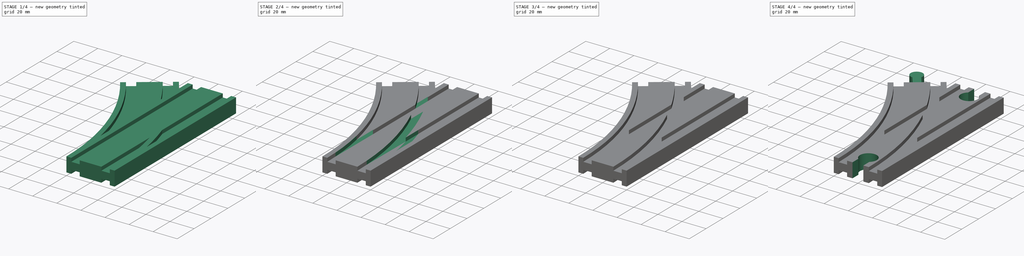
[diagram: build sequence overview — one tinted view per stage of 4, left to right]
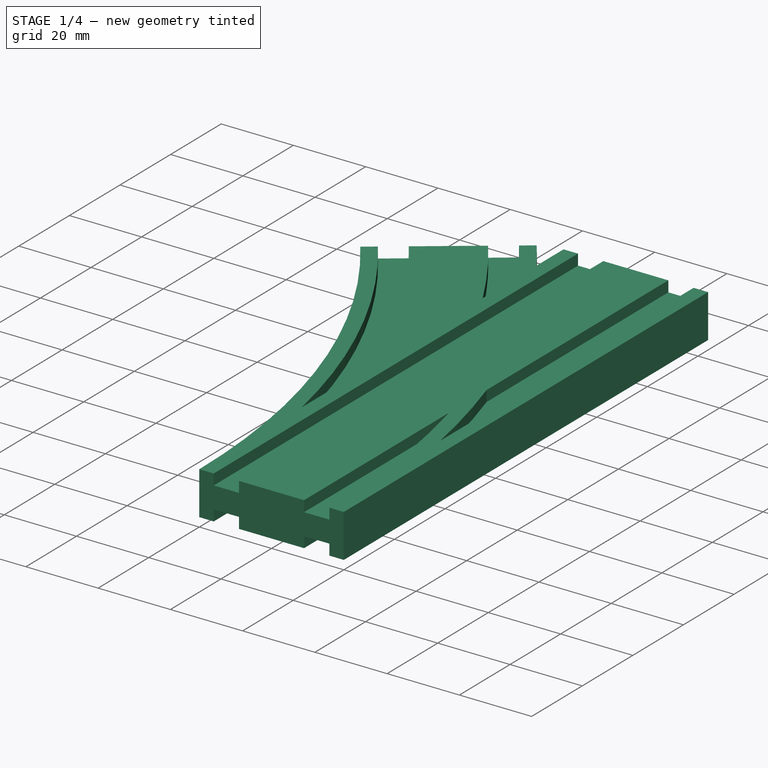
[diagram: stage 1 of 4 — iso view after this stage's code; geometry added in this stage tinted green]
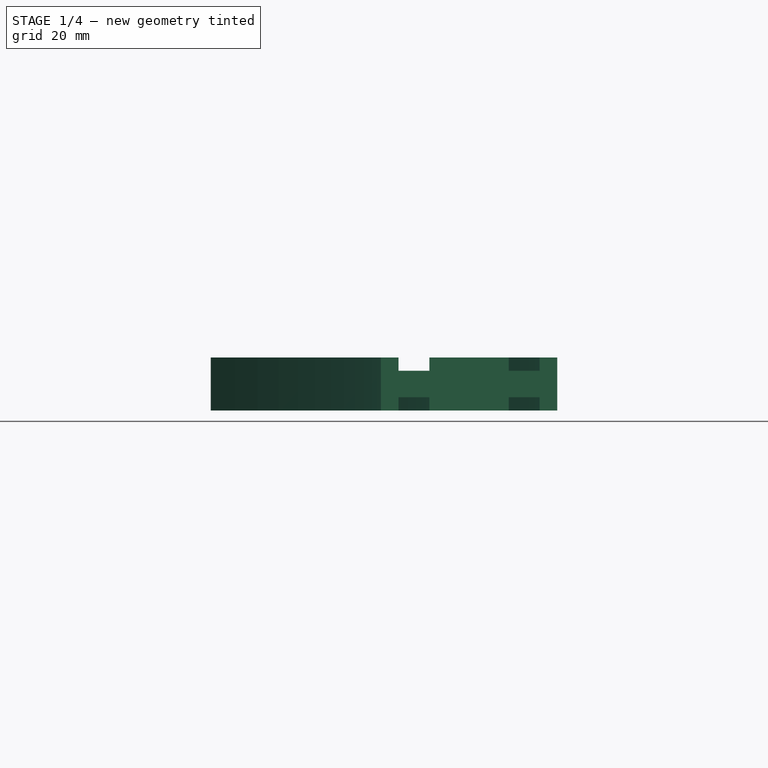
[diagram: stage 1 of 4 — front view after this stage's code; geometry added in this stage tinted green]
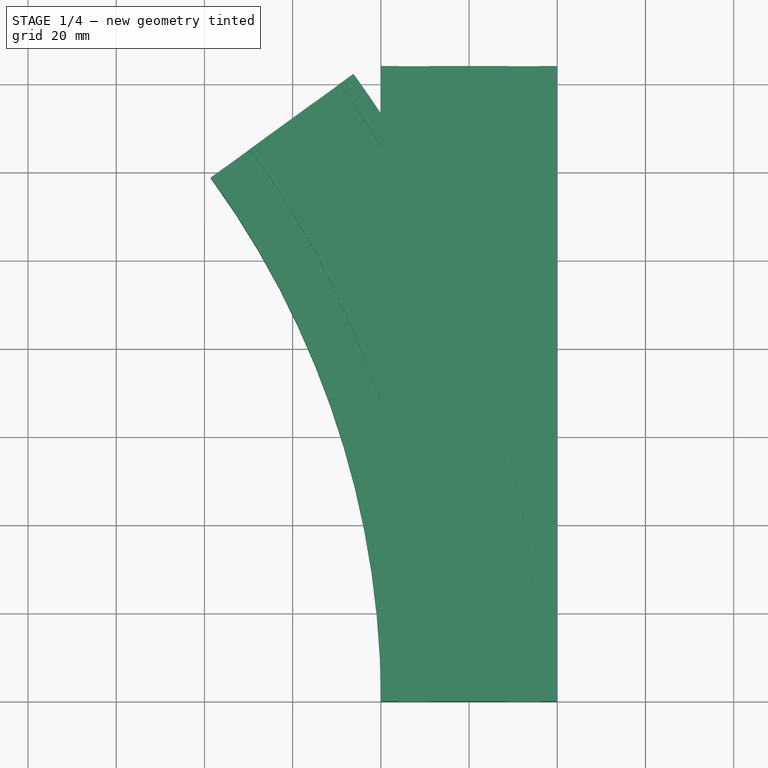
[diagram: stage 1 of 4 — top view after this stage's code; geometry added in this stage tinted green]
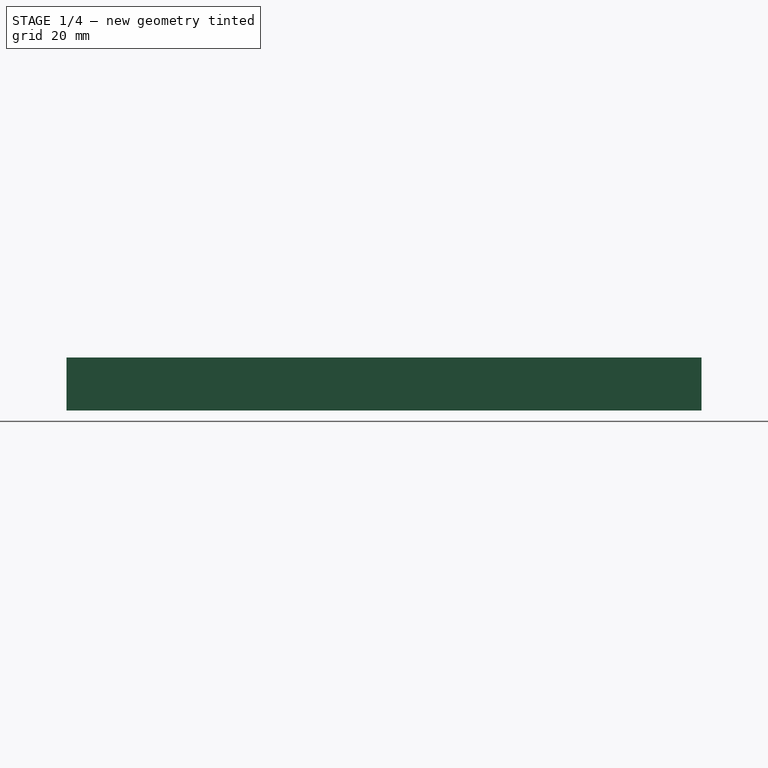
[diagram: stage 1 of 4 — right view after this stage's code; geometry added in this stage tinted green]
FCSTD DOCUMENT  (FreeCAD 0.19R24291 (Git))
Label: 222R 36 degree by 144 FMF mk2
License: All rights reserved
LicenseURL: http://en.wikipedia.org/wiki/All_rights_reserved
objects: Sketcher::SketchObject×11, PartDesign::SubtractivePipe×7, PartDesign::ShapeBinder×4, PartDesign::AdditivePipe×2, PartDesign::Body×2, PartDesign::Pocket×2, PartDesign::Mirrored×1, PartDesign::Line×1, PartDesign::Point×1, PartDesign::Pad×1
note: 44 computed .brp shape members not serialized (recipe doc carries the construction recipe); baked Part::Feature solids carry a one-line shape summary decoded from their .brp

FEATURE [Sketcher::SketchObject] Sketch  label="profile"
  FullyConstrained = true
  MapMode = 5
  Placement = pos=(0,0,0) rot=(1,0,0;1.5708rad)
  sketch-geometry (28):
    g0: LineSegment StartX=-20 StartY=6 StartZ=0 EndX=-20 EndY=-6 EndZ=0
    g1: LineSegment StartX=-20 StartY=-6 StartZ=0 EndX=-16 EndY=-6 EndZ=0
    g2: LineSegment StartX=-16 StartY=-6 StartZ=0 EndX=-16 EndY=-3 EndZ=0
    g3: LineSegment StartX=-16 StartY=-3 StartZ=0 EndX=-9 EndY=-3 EndZ=0
    g4: LineSegment StartX=-9 StartY=-3 StartZ=0 EndX=-9 EndY=-6 EndZ=0
    g5: LineSegment StartX=-9 StartY=-6 StartZ=0 EndX=9 EndY=-6 EndZ=0
    g6: LineSegment StartX=9 StartY=-6 StartZ=0 EndX=9 EndY=-3 EndZ=0
    g7: LineSegment StartX=9 StartY=-3 StartZ=0 EndX=16 EndY=-3 EndZ=0
    g8: LineSegment StartX=16 StartY=-3 StartZ=0 EndX=16 EndY=-6 EndZ=0
    g9: LineSegment StartX=16 StartY=-6 StartZ=0 EndX=20 EndY=-6 EndZ=0
    g10: LineSegment StartX=20 StartY=-6 StartZ=0 EndX=20 EndY=6 EndZ=0
    g11: LineSegment StartX=20 StartY=6 StartZ=0 EndX=16 EndY=6 EndZ=0
    g12: LineSegment StartX=16 StartY=6 StartZ=0 EndX=16 EndY=3 EndZ=0
    g13: LineSegment StartX=16 StartY=3 StartZ=0 EndX=9 EndY=3 EndZ=0
    g14: LineSegment StartX=9 StartY=3 StartZ=0 EndX=9 EndY=6 EndZ=0
    g15: LineSegment StartX=9 StartY=6 StartZ=0 EndX=-9 EndY=6 EndZ=0
    g16: LineSegment StartX=-9 StartY=6 StartZ=0 EndX=-9 EndY=3 EndZ=0
    g17: LineSegment StartX=-9 StartY=3 StartZ=0 EndX=-16 EndY=3 EndZ=0
    g18: LineSegment StartX=-16 StartY=3 StartZ=0 EndX=-16 EndY=6 EndZ=0
    g19: LineSegment StartX=-16 StartY=6 StartZ=0 EndX=-20 EndY=6 EndZ=0
    g20: LineSegment StartX=9 StartY=6 StartZ=0 EndX=16 EndY=6 EndZ=0
    g21: LineSegment StartX=-9 StartY=6 StartZ=0 EndX=-16 EndY=6 EndZ=0
    g22: LineSegment StartX=-16 StartY=-6 StartZ=0 EndX=-9 EndY=-6 EndZ=0
    g23: LineSegment StartX=16 StartY=-3 StartZ=0 EndX=16 EndY=3 EndZ=0
    g24: LineSegment StartX=-9 StartY=3 StartZ=0 EndX=9 EndY=3 EndZ=0
    g25: LineSegment StartX=-9 StartY=-3 StartZ=0 EndX=9 EndY=-3 EndZ=0
    g26: LineSegment StartX=-20 StartY=6 StartZ=0 EndX=20 EndY=-6 EndZ=0
    g27: LineSegment StartX=-20 StartY=-6 StartZ=0 EndX=20 EndY=6 EndZ=0
  constraints (76):
    c: Coincident(g1,g0)
    c: Horizontal(g1)
    c: Coincident(g2,g1)
    c: Vertical(g2)
    c: Coincident(g3,g2)
    c: Horizontal(g3)
    c: Coincident(g4,g3)
    c: Coincident(g5,g4)
    c: Horizontal(g5)
    c: Coincident(g6,g5)
    c: Coincident(g7,g6)
    c: Horizontal(g7)
    c: Coincident(g8,g7)
    c: Coincident(g9,g8)
    c: Coincident(g10,g9)
    c: Coincident(g11,g10)
    c: Coincident(g12,g11)
    c: Coincident(g13,g12)
    c: Coincident(g14,g13)
    c: Vertical(g14)
    c: Coincident(g15,g14)
    c: Coincident(g16,g15)
    c: Coincident(g17,g16)
    c: Horizontal(g17)
    c: Coincident(g18,g17)
    c: Vertical(g18)
    c: Coincident(g19,g18)
    c: Coincident(g19,g0)
    c: Horizontal(g19)
    c: Horizontal(g15)
    c: Horizontal(g13)
    c: Horizontal(g11)
    c: Horizontal(g9)
    c: Vertical(g0)
    c: Vertical(g16)
    c: Vertical(g12)
    c: Vertical(g10)
    c: Vertical(g8)
    c: Vertical(g6)
    c: Vertical(g4)
    c: Equal(g0,g10)
    c: Equal(g3,g17)
    c: Equal(g3,g13)
    c: Equal(g3,g7)
    c: Equal(g5,g15)
    c: DistanceY(g0,g0) = 12
    c: DistanceX(g1,g1) = 4
    c: Equal(g1,g9)
    c: DistanceX(g3,g3) = 7
    c: DistanceX(g5,g5) = 18
    c: Coincident(g20,g14)
    c: Coincident(g20,g11)
    c: Coincident(g21,g15)
    c: Coincident(g21,g18)
    c: Coincident(g22,g1)
    c: Coincident(g22,g4)
    c: Horizontal(g22)
    c: Horizontal(g21)
    c: Horizontal(g20)
    c: Coincident(g23,g7)
    c: Coincident(g23,g12)
    c: Vertical(g23)
    c: DistanceY(g8,g7) = 3
    c: DistanceY(g7,g12) = 6
    c: Coincident(g24,g16)
    c: Coincident(g24,g13)
    c: Horizontal(g24)
    c: Coincident(g25,g3)
    c: Coincident(g25,g6)
    c: Horizontal(g25)
    c: Coincident(g26,g0)
    c: Coincident(g26,g9)
    c: Coincident(g27,g0)
    c: Coincident(g27,g10)
    c: PointOnObject(g-1,g26)
    c: PointOnObject(g-1,g27)
FEATURE [Sketcher::SketchObject] Sketch001  label="stright CL"
  FullyConstrained = true
  MapMode = 5
  Support = -> [XY_Plane]
  sketch-geometry (1):
    g0: LineSegment StartX=0 StartY=0 StartZ=0 EndX=0 EndY=144 EndZ=0
  constraints (3):
    c: Coincident(g0,g-1)
    c: PointOnObject(g0,g-2)
    c: Distance(g0) = 144
FEATURE [Sketcher::SketchObject] Sketch002  label="curve CL"
  FullyConstrained = true
  MapMode = 5
  Support = -> [XY_Plane]
  sketch-geometry (3):
    g0: ArcOfCircle CenterX=-222 CenterY=0 CenterZ=0 NormalX=0 NormalY=0 NormalZ=1 AngleXU=0 Radius=222 StartAngle=0 EndAngle=0.628319
    g1: LineSegment StartX=-222 StartY=0 StartZ=0 EndX=0 EndY=0 EndZ=0
    g2: LineSegment StartX=-222 StartY=0 StartZ=0 EndX=-42.3982 EndY=130.488 EndZ=0
  constraints (8):
    c: Radius(g0) = 222
    c: Coincident(g1,g0)
    c: Coincident(g1,g-1)
    c: Horizontal(g1)
    c: Coincident(g2,g0)
    c: Angle(g1,g2) = 0.628319
    c: Coincident(g0,g1)
    c: Coincident(g0,g2)
FEATURE [Sketcher::SketchObject] Sketch003
  FullyConstrained = true
  MapMode = 5
  Placement = pos=(0,0,0) rot=(1,0,0;1.5708rad)
  Support = -> [XZ_Plane]
FEATURE [PartDesign::AdditivePipe] AdditivePipe
  AuxilleryCurvelinear = true
  AuxillerySpineTangent = false
  Binormal = (0,0,0)
  Mode = 0
  Placement = pos=(0,0,0) rot=(1,0,0;1.5708rad)
  Profile = -> Sketch
  Spine = -> Sketch002
  SpineTangent = false
  Transformation = 0
  Transition = 0
FEATURE [PartDesign::AdditivePipe] AdditivePipe001
  AuxilleryCurvelinear = true
  AuxillerySpineTangent = false
  BaseFeature = -> AdditivePipe
  Binormal = (0,0,0)
  Mode = 0
  Placement = pos=(0,0,0) rot=(1,0,0;1.5708rad)
  Profile = -> Sketch
  Spine = -> Sketch001
  SpineTangent = false
  Transformation = 0
  Transition = 0
FEATURE [Sketcher::SketchObject] Sketch004  label="track cut 1"
  ExternalGeometry = -> [AdditivePipe001]
  FullyConstrained = true
  MapMode = 5
  Placement = pos=(0,0,0) rot=(1,0,0;1.5708rad)
  Support = -> [XZ_Plane]
  sketch-geometry (4):
    g0: LineSegment StartX=-16 StartY=6 StartZ=0 EndX=-16 EndY=3 EndZ=0
    g1: LineSegment StartX=-16 StartY=3 StartZ=0 EndX=-9 EndY=3 EndZ=0
    g2: LineSegment StartX=-9 StartY=3 StartZ=0 EndX=-9 EndY=6 EndZ=0
    g3: LineSegment StartX=-9 StartY=6 StartZ=0 EndX=-16 EndY=6 EndZ=0
  constraints (8):
    c: Coincident(g0,g-4)
    c: Coincident(g0,g-4)
    c: Coincident(g1,g0)
    c: Coincident(g1,g-5)
    c: Coincident(g2,g1)
    c: Coincident(g2,g-5)
    c: Coincident(g3,g2)
    c: Coincident(g3,g0)
FEATURE [PartDesign::SubtractivePipe] SubtractivePipe
  AuxilleryCurvelinear = true
  AuxillerySpineTangent = false
  BaseFeature = -> AdditivePipe001
  Binormal = (0,0,0)
  Mode = 0
  Placement = pos=(0,0,0) rot=(1,0,0;1.5708rad)
  Profile = -> Sketch004
  Spine = -> Sketch001
  SpineTangent = false
  Transformation = 0
  Transition = 0
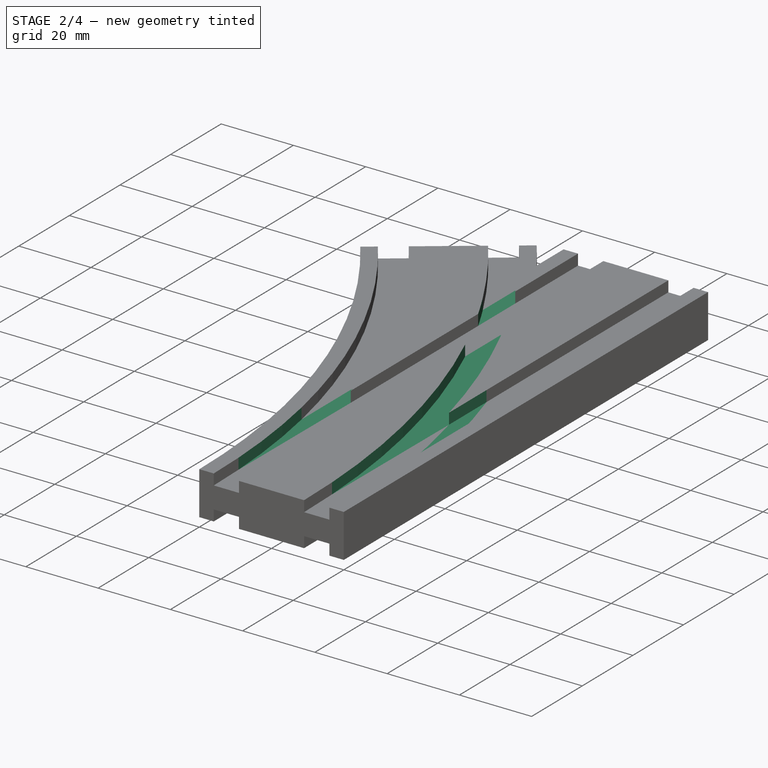
[diagram: stage 2 of 4 — iso view after this stage's code; geometry added in this stage tinted green]
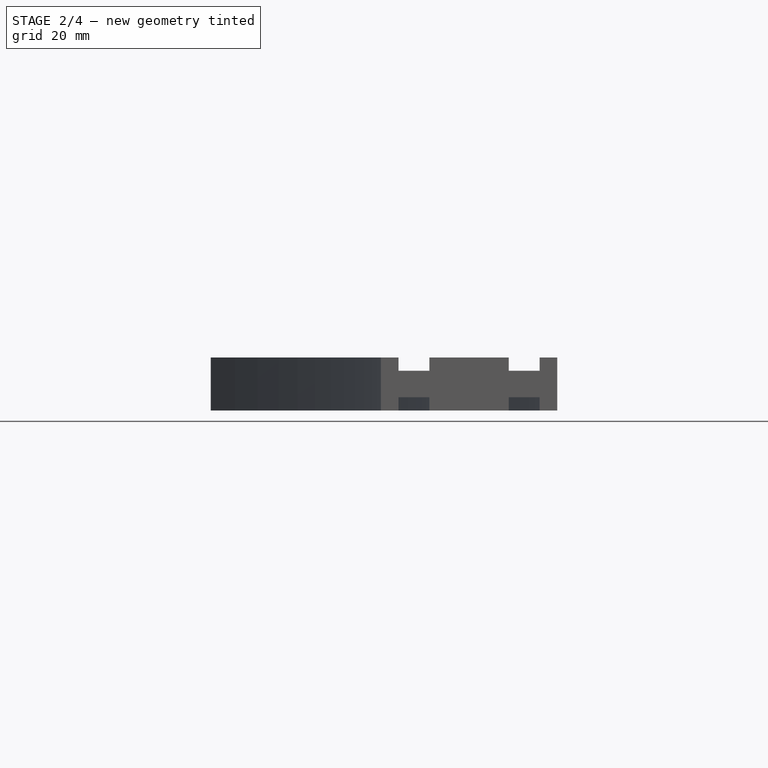
[diagram: stage 2 of 4 — front view after this stage's code; geometry added in this stage tinted green]
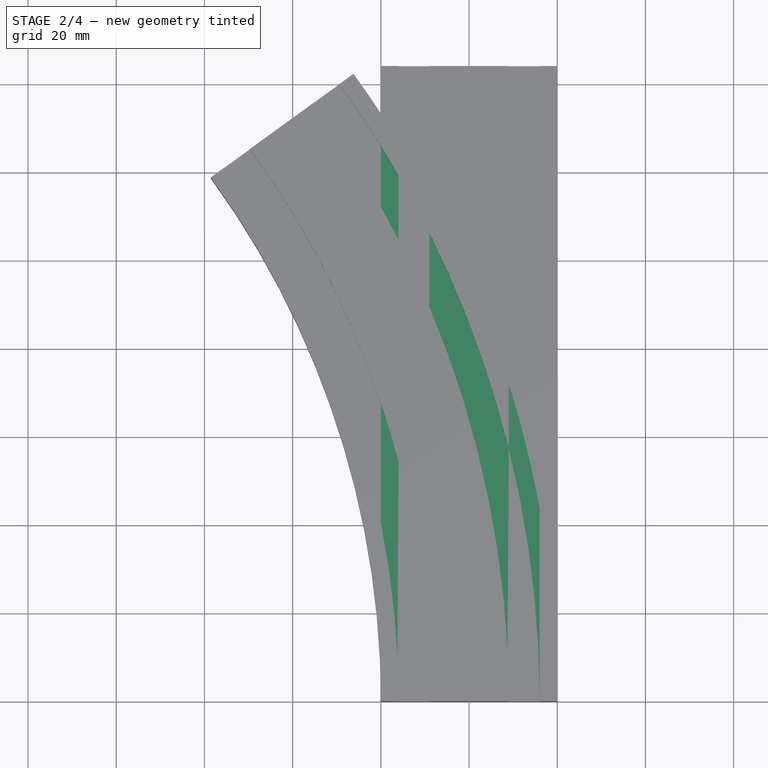
[diagram: stage 2 of 4 — top view after this stage's code; geometry added in this stage tinted green]
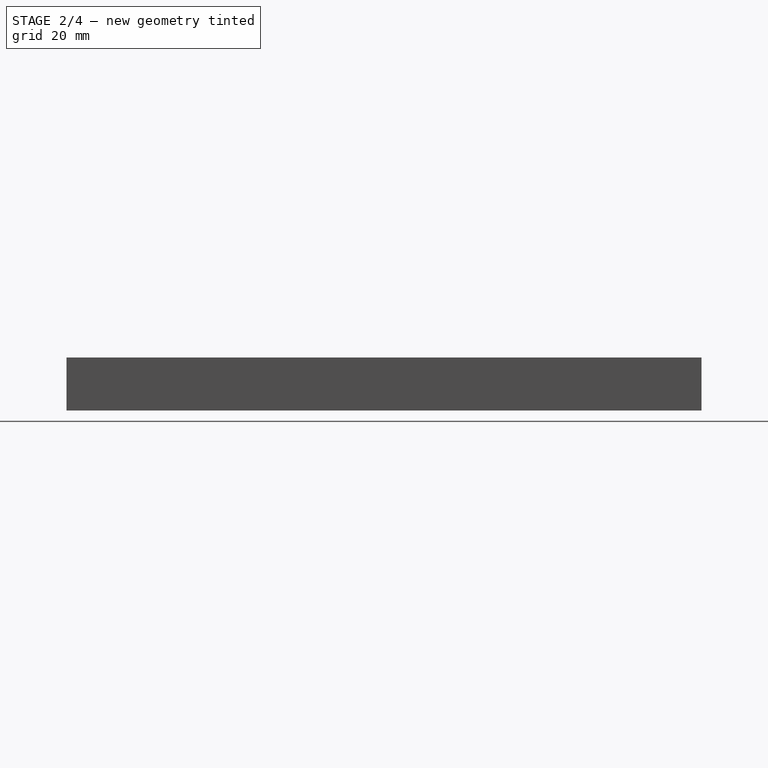
[diagram: stage 2 of 4 — right view after this stage's code; geometry added in this stage tinted green]
FEATURE [PartDesign::SubtractivePipe] SubtractivePipe001
  AuxilleryCurvelinear = true
  AuxillerySpineTangent = false
  BaseFeature = -> SubtractivePipe
  Binormal = (0,0,0)
  Mode = 0
  Placement = pos=(0,0,0) rot=(1,0,0;1.5708rad)
  Profile = -> Sketch004
  Spine = -> Sketch002
  SpineTangent = false
  Transformation = 0
  Transition = 0
FEATURE [Sketcher::SketchObject] Sketch005  label="track cut 2"
  ExternalGeometry = -> [SubtractivePipe001]
  FullyConstrained = true
  MapMode = 5
  Placement = pos=(0,0,0) rot=(1,0,0;1.5708rad)
  Support = -> [SubtractivePipe001]
  sketch-geometry (4):
    g0: LineSegment StartX=9 StartY=3 StartZ=0 EndX=16 EndY=3 EndZ=0
    g1: LineSegment StartX=16 StartY=3 StartZ=0 EndX=16 EndY=6 EndZ=0
    g2: LineSegment StartX=16 StartY=6 StartZ=0 EndX=9 EndY=6 EndZ=0
    g3: LineSegment StartX=9 StartY=6 StartZ=0 EndX=9 EndY=3 EndZ=0
  constraints (8):
    c: Coincident(g0,g-4)
    c: Coincident(g0,g-5)
    c: Coincident(g1,g0)
    c: Coincident(g1,g-5)
    c: Coincident(g2,g1)
    c: Coincident(g2,g-3)
    c: Coincident(g3,g2)
    c: Coincident(g3,g0)
FEATURE [PartDesign::SubtractivePipe] SubtractivePipe002
  AuxilleryCurvelinear = true
  AuxillerySpineTangent = false
  BaseFeature = -> SubtractivePipe001
  Binormal = (0,0,0)
  Mode = 0
  Placement = pos=(0,0,0) rot=(1,0,0;1.5708rad)
  Profile = -> Sketch005
  Spine = -> Sketch002
  SpineTangent = false
  Transformation = 0
  Transition = 0
FEATURE [PartDesign::SubtractivePipe] SubtractivePipe003
  AuxilleryCurvelinear = true
  AuxillerySpineTangent = false
  BaseFeature = -> SubtractivePipe002
  Binormal = (0,0,0)
  Mode = 0
  Placement = pos=(0,0,0) rot=(1,0,0;1.5708rad)
  Profile = -> Sketch005
  Spine = -> Sketch001
  SpineTangent = false
  Transformation = 0
  Transition = 0
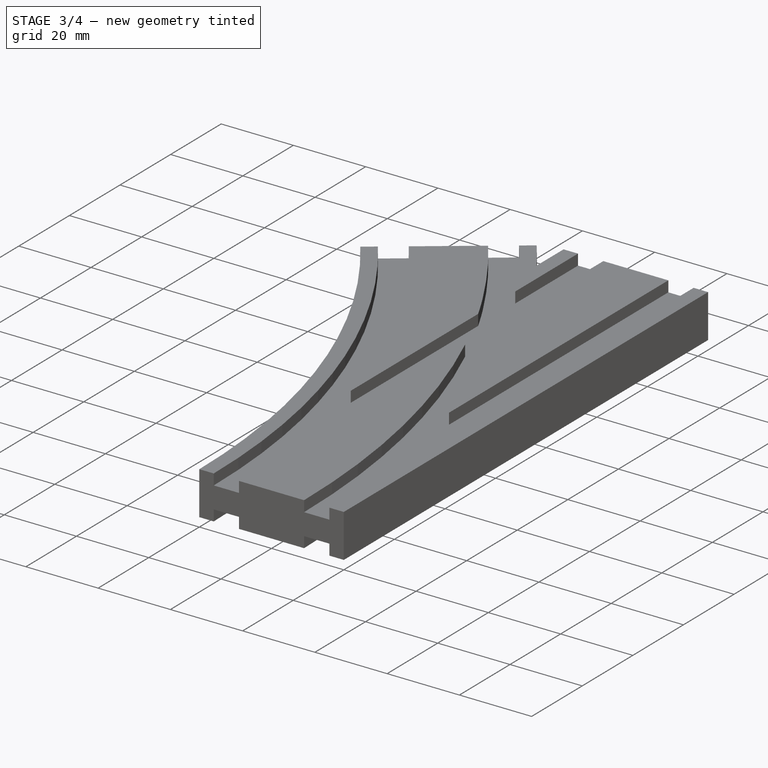
[diagram: stage 3 of 4 — iso view after this stage's code; geometry added in this stage tinted green]
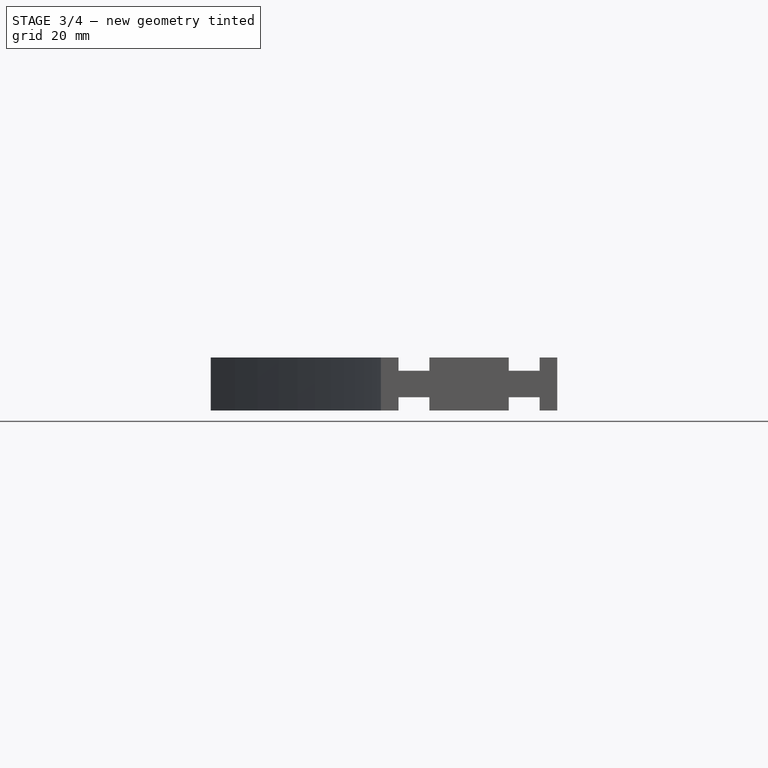
[diagram: stage 3 of 4 — front view after this stage's code; geometry added in this stage tinted green]
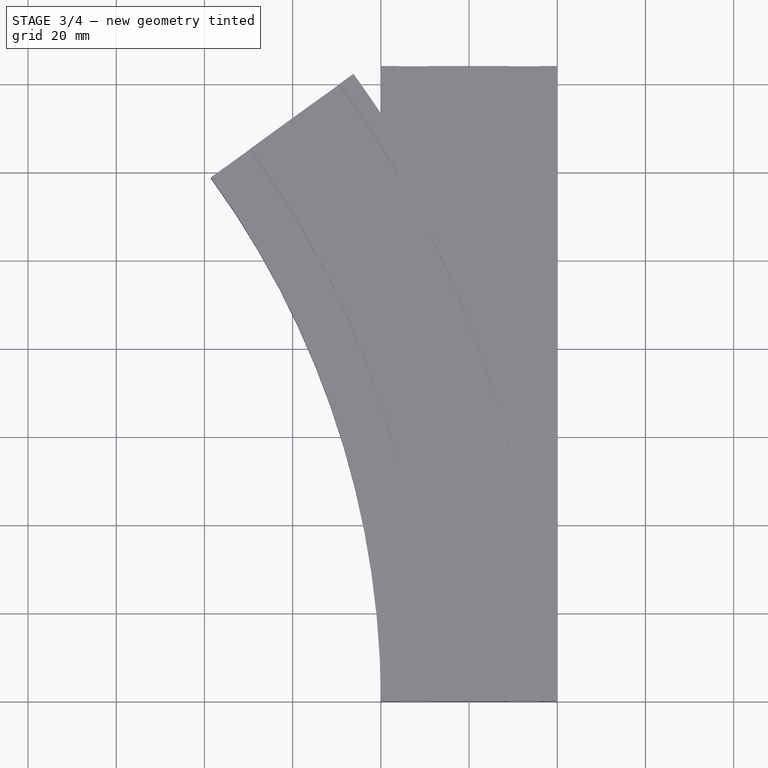
[diagram: stage 3 of 4 — top view after this stage's code; geometry added in this stage tinted green]
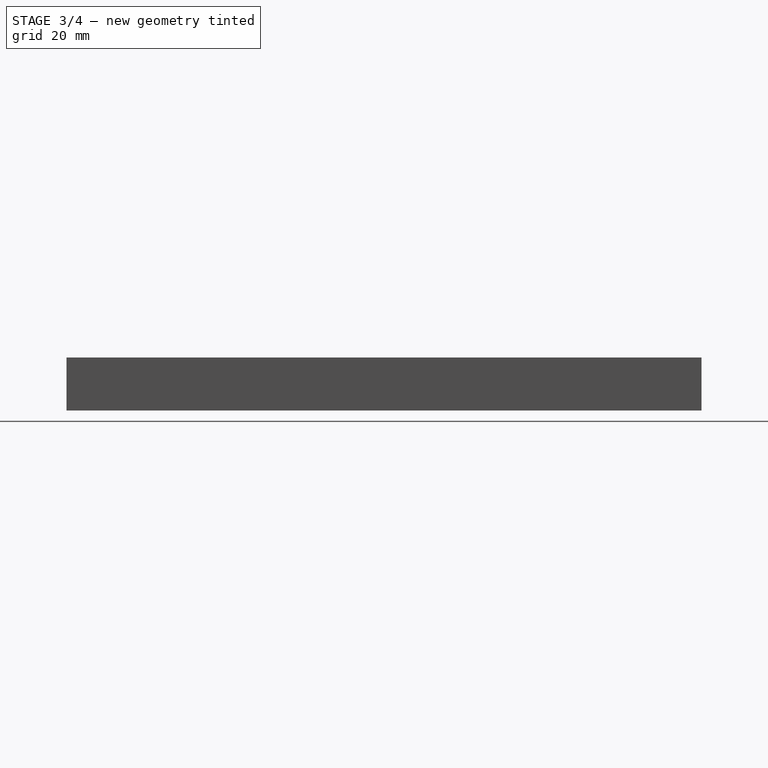
[diagram: stage 3 of 4 — right view after this stage's code; geometry added in this stage tinted green]
FEATURE [PartDesign::Mirrored] Mirrored  label="bottom track cut"
  BaseFeature = -> SubtractivePipe003
  MirrorPlane = -> XY_Plane
  Originals = -> [SubtractivePipe003]
  Placement = pos=(0,0,0) rot=(1,0,0;1.5708rad)
FEATURE [Sketcher::SketchObject] Sketch009  label="bottom track cut1"
  FullyConstrained = false
  MapMode = 5
  Placement = pos=(0,0,0) rot=(1,0,0;1.5708rad)
  Support = -> [XZ_Plane]
  sketch-geometry (4):
    g0: LineSegment StartX=-16 StartY=-6 StartZ=0 EndX=-9 EndY=-6 EndZ=0
    g1: LineSegment StartX=-9 StartY=-6 StartZ=0 EndX=-9 EndY=-3 EndZ=0
    g2: LineSegment StartX=-9 StartY=-3 StartZ=0 EndX=-16 EndY=-3 EndZ=0
    g3: LineSegment StartX=-16 StartY=-3 StartZ=0 EndX=-16 EndY=-6 EndZ=0
  constraints (4):
    c: Coincident(g1,g0)
    c: Coincident(g2,g1)
    c: Coincident(g3,g2)
    c: Coincident(g3,g0)
FEATURE [PartDesign::SubtractivePipe] SubtractivePipe004
  AuxilleryCurvelinear = true
  AuxillerySpineTangent = false
  BaseFeature = -> Mirrored
  Binormal = (0,0,0)
  Mode = 0
  Placement = pos=(0,0,0) rot=(1,0,0;1.5708rad)
  Profile = -> Sketch009
  Spine = -> Sketch002
  SpineTangent = false
  Transformation = 0
  Transition = 0
FEATURE [PartDesign::SubtractivePipe] SubtractivePipe005
  AuxilleryCurvelinear = true
  AuxillerySpineTangent = false
  BaseFeature = -> SubtractivePipe004
  Binormal = (0,0,0)
  Mode = 0
  Placement = pos=(0,0,0) rot=(1,0,0;1.5708rad)
  Profile = -> Sketch009
  Spine = -> Sketch001
  SpineTangent = false
  Transformation = 0
  Transition = 0
FEATURE [Sketcher::SketchObject] Sketch010
  ExternalGeometry = -> [SubtractivePipe005]
  FullyConstrained = true
  MapMode = 5
  Placement = pos=(0,0,0) rot=(1,0,0;1.5708rad)
  Support = -> [SubtractivePipe005]
  sketch-geometry (4):
    g0: LineSegment StartX=9 StartY=-6 StartZ=0 EndX=16 EndY=-6 EndZ=0
    g1: LineSegment StartX=16 StartY=-6 StartZ=0 EndX=16 EndY=-3 EndZ=0
    g2: LineSegment StartX=16 StartY=-3 StartZ=0 EndX=9 EndY=-3 EndZ=0
    g3: LineSegment StartX=9 StartY=-3 StartZ=0 EndX=9 EndY=-6 EndZ=0
  constraints (8):
    c: Coincident(g0,g-3)
    c: Coincident(g0,g-5)
    c: Coincident(g1,g0)
    c: Coincident(g1,g-5)
    c: Coincident(g2,g1)
    c: Coincident(g2,g-4)
    c: Coincident(g3,g2)
    c: Coincident(g3,g0)
FEATURE [PartDesign::SubtractivePipe] SubtractivePipe006
  AuxilleryCurvelinear = true
  AuxillerySpineTangent = false
  BaseFeature = -> SubtractivePipe005
  Binormal = (0,0,0)
  Mode = 0
  Placement = pos=(0,0,0) rot=(1,0,0;1.5708rad)
  Profile = -> Sketch010
  Spine = -> Sketch002
  SpineTangent = false
  Transformation = 0
  Transition = 0
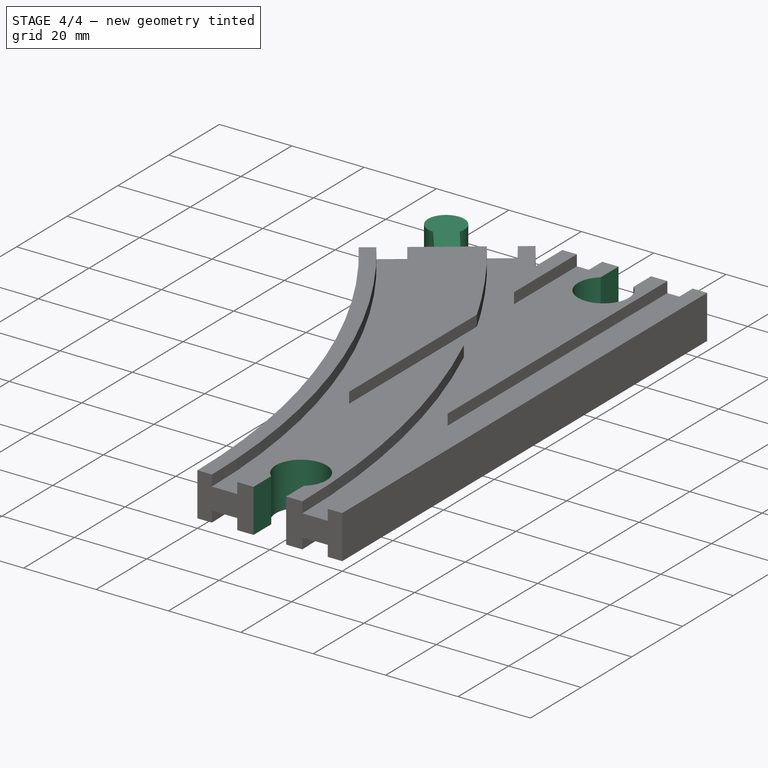
[diagram: stage 4 of 4 — iso view after this stage's code; geometry added in this stage tinted green]
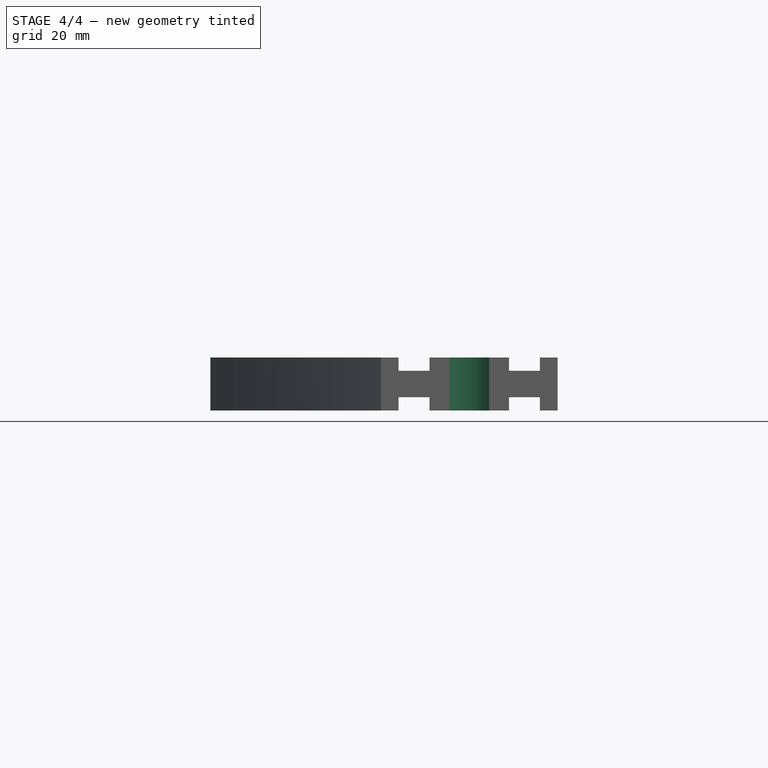
[diagram: stage 4 of 4 — front view after this stage's code; geometry added in this stage tinted green]
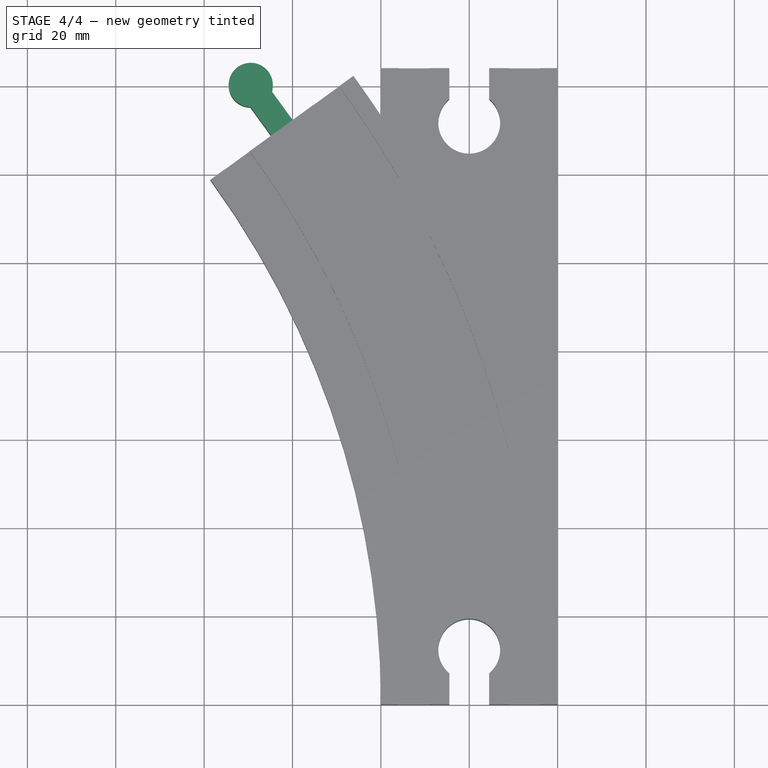
[diagram: stage 4 of 4 — top view after this stage's code; geometry added in this stage tinted green]
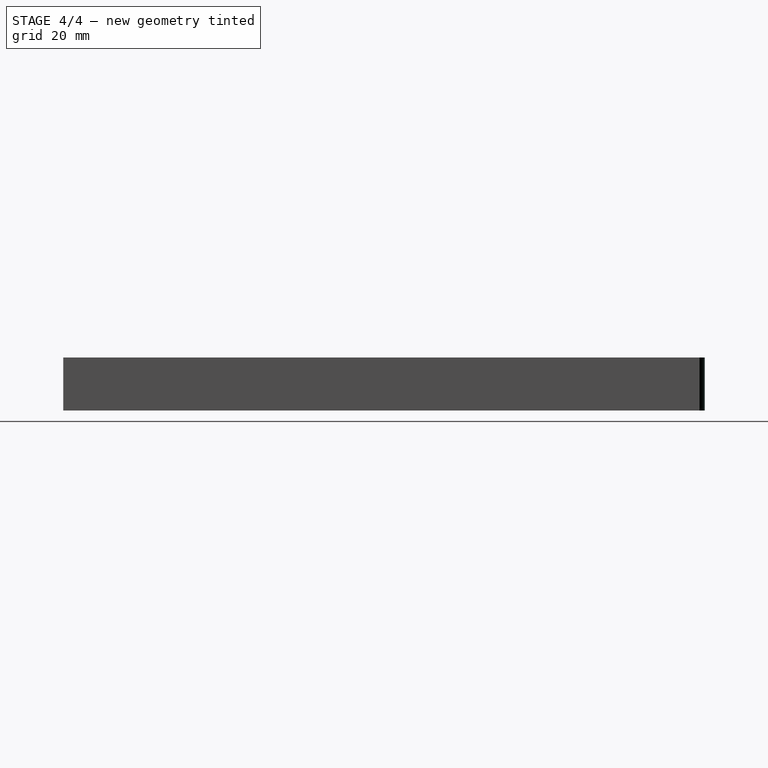
[diagram: stage 4 of 4 — right view after this stage's code; geometry added in this stage tinted green]
FEATURE [PartDesign::Line] DatumLine
  AttacherType = Attacher::AttachEngineLine
  Length = 20
  ResizeMode = 0
FEATURE [PartDesign::ShapeBinder] CopySubtractivePipe006004 .. CopySubtractivePipe006007  x4 (patterned run collapsed; names and placements below)
  TraceSupport = false
  placements: all 4 at pos=(0,0,0) rot=(1,0,0;1.5708rad)
FEATURE [PartDesign::Point] DatumPoint002
  AttacherType = Attacher::AttachEnginePoint
  MapMode = 37
  Placement = pos=(-42.3982,130.488,-1.43e-14) rot=(0,0,1;0rad)
  Support = -> [CopySubtractivePipe006004,CopySubtractivePipe006005,CopySubtractivePipe006006,CopySubtractivePipe006007]
FEATURE [Sketcher::SketchObject] Sketch012
  ExternalGeometry = -> [CopySubtractivePipe006005]
  FullyConstrained = true
  MapMode = 5
  Support = -> [XY_Plane003]
  sketch-geometry (6):
    g0: LineSegment StartX=-49.6794 StartY=125.198 StartZ=0 EndX=-44.8253 EndY=128.725 EndZ=0
    g1: LineSegment StartX=-35.1171 StartY=135.778 StartZ=0 EndX=-39.9712 EndY=132.252 EndZ=0
    g2: LineSegment StartX=-44.8253 StartY=128.725 StartZ=0 EndX=-39.9712 EndY=132.252 EndZ=0
    g3: LineSegment StartX=-44.8253 StartY=128.725 StartZ=0 EndX=-49.5276 EndY=135.197 EndZ=0
    g4: LineSegment StartX=-39.9712 StartY=132.252 StartZ=0 EndX=-44.6735 EndY=138.724 EndZ=0
    g5: ArcOfCircle CenterX=-49.4517 CenterY=140.197 CenterZ=0 NormalX=0 NormalY=0 NormalZ=1 AngleXU=0 Radius=5 StartAngle=5.98421 EndAngle=10.9804
  constraints (17):
    c: Coincident(g0,g-3)
    c: PointOnObject(g0,g-3)
    c: Coincident(g1,g-3)
    c: PointOnObject(g1,g-3)
    c: Coincident(g2,g0)
    c: Coincident(g2,g1)
    c: Coincident(g3,g2)
    c: Coincident(g4,g2)
    c: Angle(g2,g3) = 1.5708
    c: Angle(g4,g2) = 1.5708
    c: Distance(g2) = 6
    c: Distance(g3) = 8
    c: Equal(g3,g4)
    c: Equal(g0,g1)
    c: Diameter(g5) = 10
    c: Coincident(g5,g4)
    c: Coincident(g5,g3)
FEATURE [PartDesign::Pad] Pad002
  Direction = (1,1,1)
  Length = 12
  Length2 = 100
  Midplane = true
  Profile = -> Sketch012
  Type = 0
FEATURE [PartDesign::Body] Body003  label="male 2"
  Group = -> [DatumLine,DatumPoint002,CopySubtractivePipe006004,CopySubtractivePipe006005,CopySubtractivePipe006006,CopySubtractivePipe006007,Sketch012,Pad002]
  Origin = -> Origin003
  Tip = -> Pad002
FEATURE [Sketcher::SketchObject] Sketch013
  ExternalGeometry = -> [SubtractivePipe006]
  FullyConstrained = true
  MapMode = 5
  Support = -> [XY_Plane]
  sketch-geometry (6):
    g0: LineSegment StartX=-9 StartY=144 StartZ=0 EndX=-4.5 EndY=144 EndZ=0
    g1: LineSegment StartX=9 StartY=144 StartZ=0 EndX=4.5 EndY=144 EndZ=0
    g2: LineSegment StartX=-4.5 StartY=144 StartZ=0 EndX=4.5 EndY=144 EndZ=0
    g3: LineSegment StartX=4.5 StartY=144 StartZ=0 EndX=4.5 EndY=137 EndZ=0
    g4: LineSegment StartX=-4.5 StartY=144 StartZ=0 EndX=-4.5 EndY=137 EndZ=0
    g5: ArcOfCircle CenterX=2e-15 CenterY=131.638 CenterZ=0 NormalX=0 NormalY=0 NormalZ=1 AngleXU=0 Radius=7 StartAngle=2.26902 EndAngle=7.15576
  constraints (17):
    c: Coincident(g0,g-3)
    c: PointOnObject(g0,g-3)
    c: Coincident(g1,g-3)
    c: PointOnObject(g1,g-3)
    c: Coincident(g2,g0)
    c: Coincident(g2,g1)
    c: Coincident(g3,g2)
    c: Vertical(g3)
    c: Coincident(g4,g2)
    c: Vertical(g4)
    c: Distance(g2) = 9
    c: Distance(g4) = 7
    c: Equal(g4,g3)
    c: Equal(g1,g0)
    c: Diameter(g5) = 14
    c: Coincident(g5,g4)
    c: Coincident(g5,g3)
FEATURE [PartDesign::Pocket] Pocket
  BaseFeature = -> SubtractivePipe006
  Length = 5
  Length2 = 100
  Midplane = true
  Placement = pos=(0,0,0) rot=(1,0,0;1.5708rad)
  Profile = -> Sketch013
  Type = 1
FEATURE [Sketcher::SketchObject] Sketch014
  ExternalGeometry = -> [Pocket]
  FullyConstrained = true
  MapMode = 5
  Support = -> [XY_Plane]
  sketch-geometry (6):
    g0: LineSegment StartX=-9 StartY=2.7e-15 StartZ=0 EndX=-4.5 EndY=2.7e-15 EndZ=0
    g1: LineSegment StartX=9 StartY=2.7e-15 StartZ=0 EndX=4.5 EndY=2.7e-15 EndZ=0
    g2: LineSegment StartX=-4.5 StartY=2.7e-15 StartZ=0 EndX=4.5 EndY=2.7e-15 EndZ=0
    g3: LineSegment StartX=4.5 StartY=2.7e-15 StartZ=0 EndX=4.5 EndY=7 EndZ=0
    g4: LineSegment StartX=-4.5 StartY=2.7e-15 StartZ=0 EndX=-4.5 EndY=7 EndZ=0
    g5: ArcOfCircle CenterX=1.3e-15 CenterY=12.3619 CenterZ=0 NormalX=0 NormalY=0 NormalZ=1 AngleXU=0 Radius=7 StartAngle=5.41061 EndAngle=10.2974
  constraints (17):
    c: Coincident(g0,g-3)
    c: PointOnObject(g0,g-3)
    c: Coincident(g1,g-3)
    c: PointOnObject(g1,g-3)
    c: Coincident(g2,g0)
    c: Coincident(g2,g1)
    c: Coincident(g3,g2)
    c: Coincident(g4,g2)
    c: Vertical(g4)
    c: Vertical(g3)
    c: Distance(g2) = 9
    c: Equal(g0,g1)
    c: Equal(g3,g4)
    c: Distance(g4) = 7
    c: Diameter(g5) = 14
    c: Coincident(g5,g3)
    c: Coincident(g5,g4)
FEATURE [PartDesign::Pocket] Pocket001
  BaseFeature = -> Pocket
  Length = 5
  Length2 = 100
  Midplane = true
  Placement = pos=(0,0,0) rot=(1,0,0;1.5708rad)
  Profile = -> Sketch014
  Type = 1
FEATURE [PartDesign::Body] Body
  Group = -> [Sketch,Sketch001,Sketch002,Sketch003,AdditivePipe,AdditivePipe001,Sketch004,SubtractivePipe,SubtractivePipe001,Sketch005,SubtractivePipe002,SubtractivePipe003,Mirrored,Sketch009,SubtractivePipe004,SubtractivePipe005,Sketch010,SubtractivePipe006,Sketch013,Pocket,Sketch014,Pocket001]
  Origin = -> Origin
  Tip = -> Pocket001
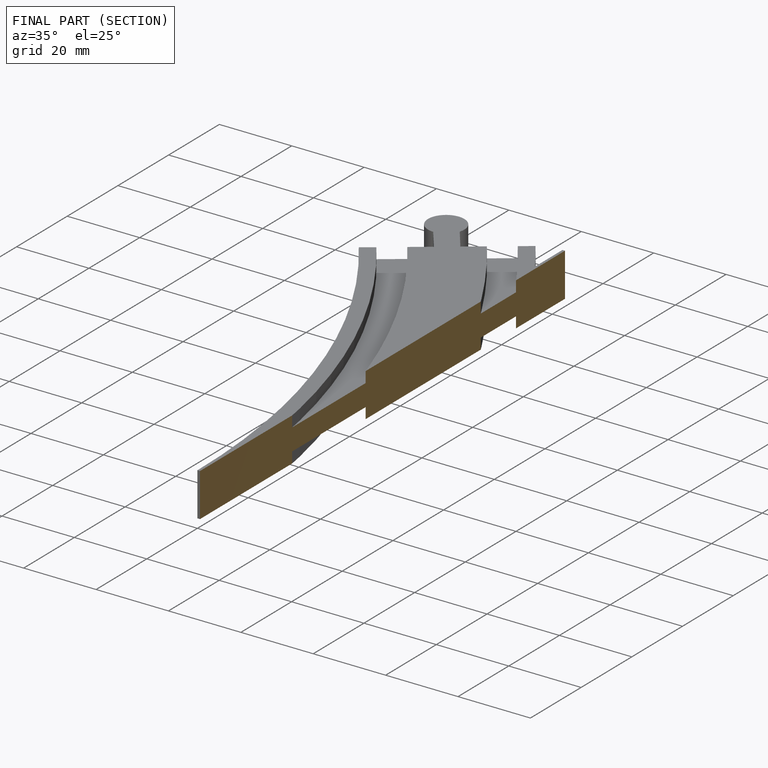
[diagram: finished part — half-section view (interior)]
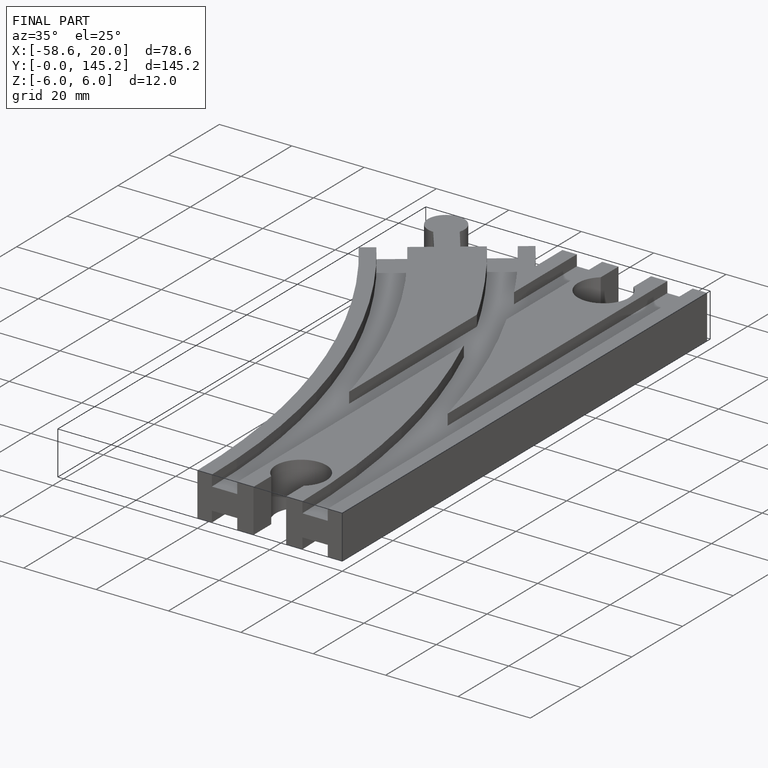
[diagram: finished part — iso view with bounding-box wireframe]
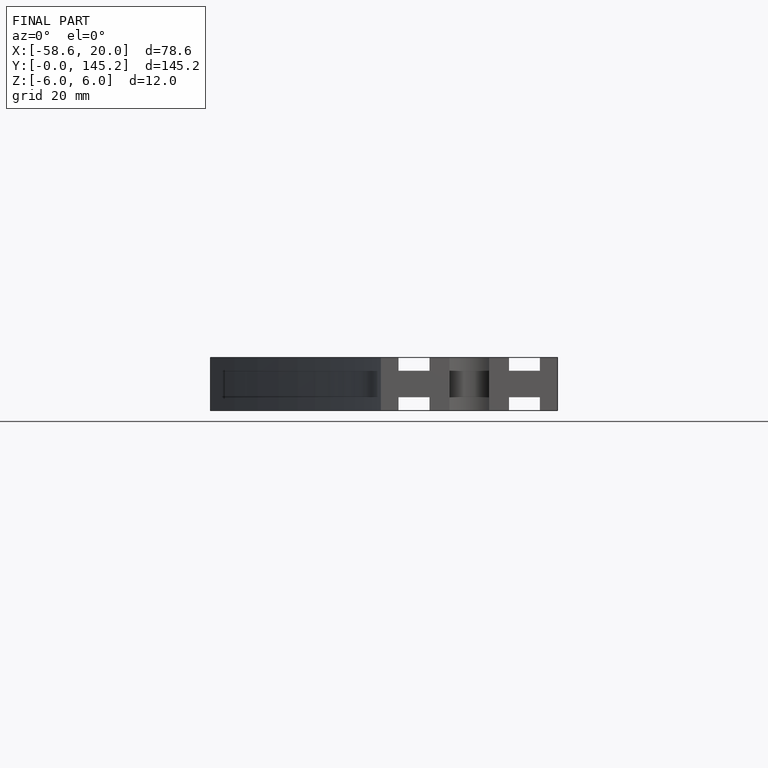
[diagram: finished part — front view with bounding-box wireframe]
